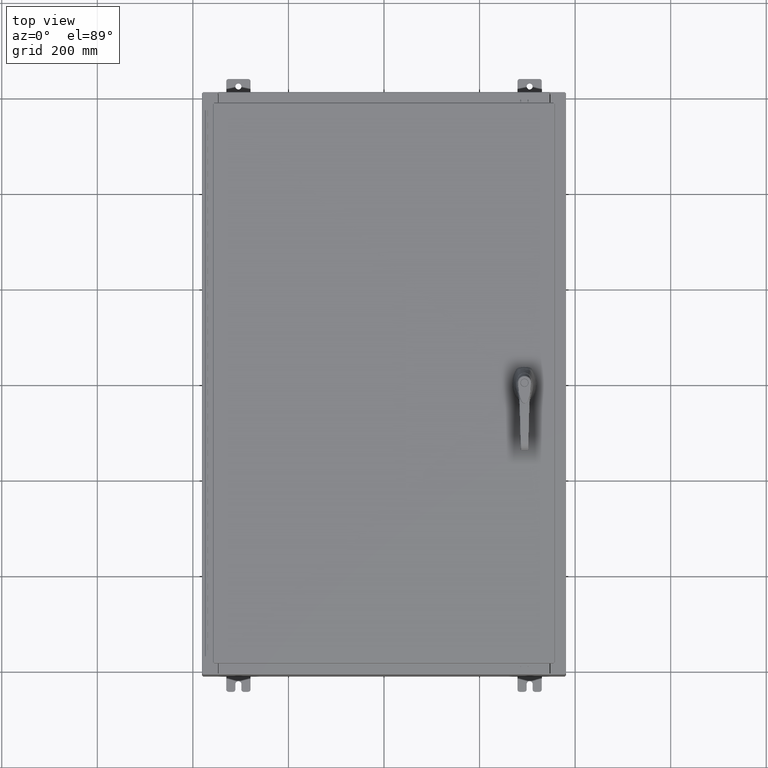
[diagram: clean part render]
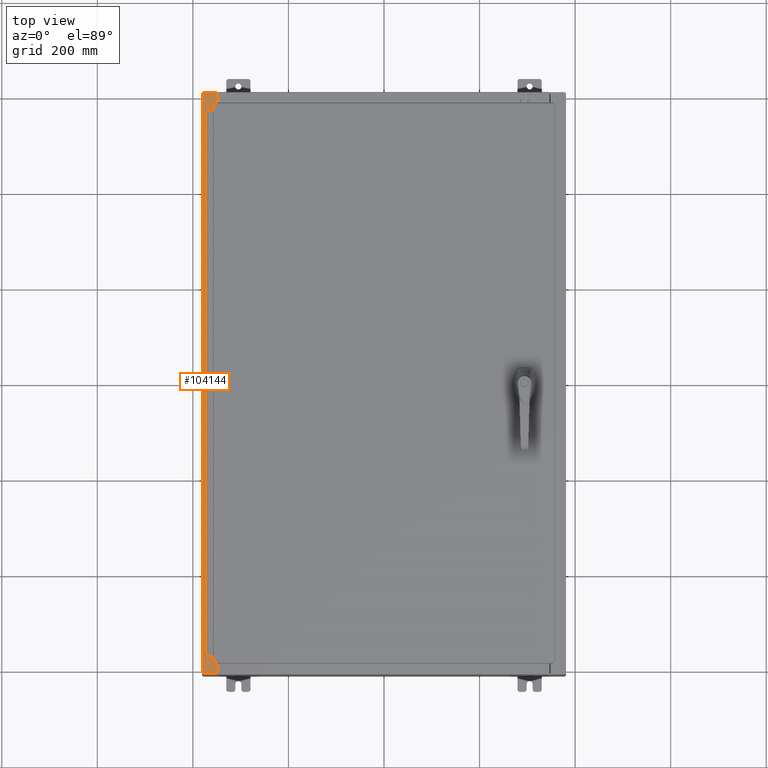
[diagram: same view with one face highlighted and labeled with its STEP entity id]
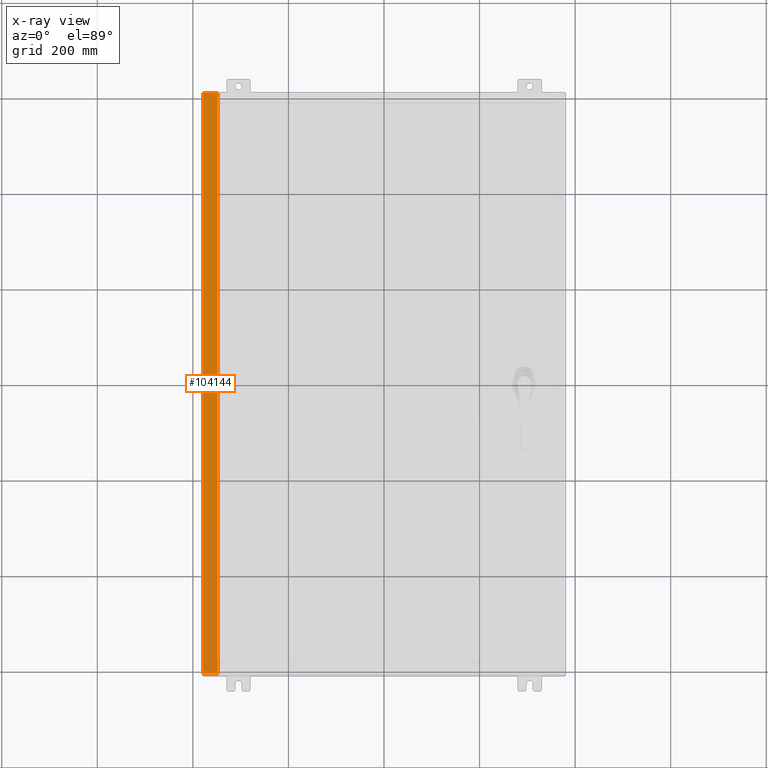
[diagram: x-ray of the same camera — body ghosted, the highlighted face saturated]
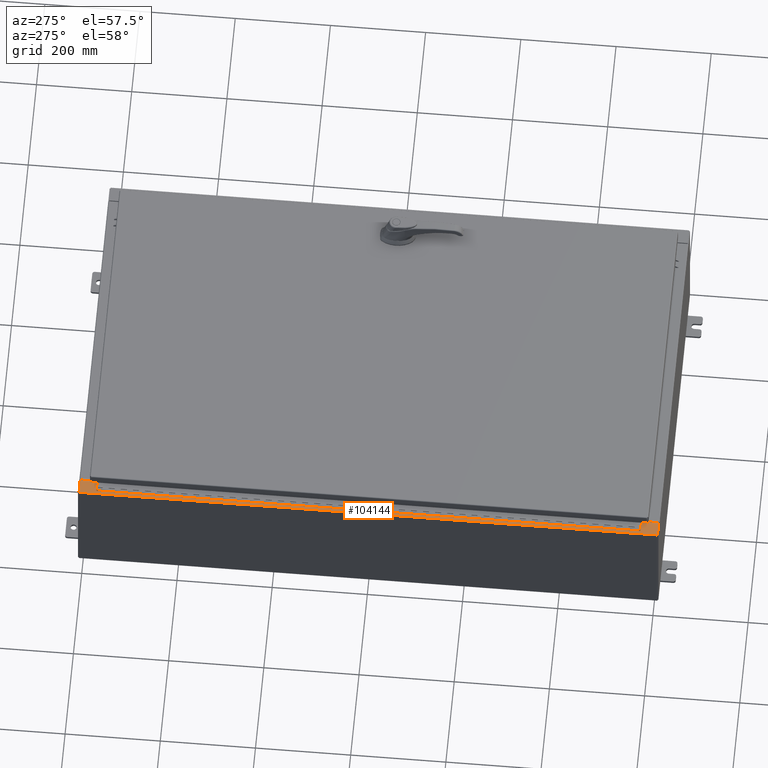
[diagram: same view with one face highlighted and labeled with its STEP entity id]
A machine part, top view. The second image highlights one B-rep face of the part: STEP entity #104144.
The next image is the same camera in x-ray: the body ghosted, the highlighted face saturated — about 0% of this face is hidden behind the body in this view.
A second angle (auxiliary view) of the same face is appended — the face is thin or edge-on in the first view.
In plain terms, the highlighted planar face has unit normal (0, -0, -1).
Its self-contained STEP definition (entity closure, byte-faithful):
#1047 = CARTESIAN_POINT ( 'NONE',  ( -14.91230000000003900, -23.92529999999998200, 9.925299999999998200 ) ) ;
#2034 = VERTEX_POINT ( 'NONE', #50280 ) ;
#2399 = LINE ( 'NONE', #49290, #108466 ) ;
#2751 = DIRECTION ( 'NONE',  ( 1.000000000000000000, -4.379057701015053300E-047, 7.132762385546384700E-015 ) ) ;
#3239 = EDGE_CURVE ( 'NONE', #2034, #44377, #90040, .T. ) ;
#5123 = VERTEX_POINT ( 'NONE', #18824 ) ;
#6023 = ORIENTED_EDGE ( 'NONE', *, *, #55796, .F. ) ;
#6844 = CARTESIAN_POINT ( 'NONE',  ( -13.69970000000003900, 22.63110000000000400, 9.925300000000007100 ) ) ;
#7265 = PLANE ( 'NONE',  #94428 ) ;
#9211 = ORIENTED_EDGE ( 'NONE', *, *, #113988, .F. ) ;
#10143 = ORIENTED_EDGE ( 'NONE', *, *, #124432, .F. ) ;
#10261 = ORIENTED_EDGE ( 'NONE', *, *, #82898, .T. ) ;
#14428 = DIRECTION ( 'NONE',  ( 4.567295697298285000E-017, 1.000000000000000000, -4.567295697298248600E-017 ) ) ;
#15144 = VERTEX_POINT ( 'NONE', #104171 ) ;
#15501 = VERTEX_POINT ( 'NONE', #50083 ) ;
#16002 = CARTESIAN_POINT ( 'NONE',  ( -13.69970000000003900, 22.63110000000000400, 9.925300000000007100 ) ) ;
#16205 = VERTEX_POINT ( 'NONE', #84220 ) ;
#16533 = EDGE_CURVE ( 'NONE', #5123, #44377, #71769, .T. ) ;
#16674 = VERTEX_POINT ( 'NONE', #121655 ) ;
#17579 = DIRECTION ( 'NONE',  ( 7.132762385546384700E-015, -4.567295697298280600E-017, -1.000000000000000000 ) ) ;
#18245 = ORIENTED_EDGE ( 'NONE', *, *, #48439, .T. ) ;
#18824 = CARTESIAN_POINT ( 'NONE',  ( -13.75005000000003700, -22.63109999999997500, 9.925300000000007100 ) ) ;
#18844 = EDGE_CURVE ( 'NONE', #117971, #60412, #52752, .T. ) ;
#20532 = VERTEX_POINT ( 'NONE', #65198 ) ;
#21724 = ORIENTED_EDGE ( 'NONE', *, *, #24195, .T. ) ;
#22668 = LINE ( 'NONE', #74558, #73967 ) ;
#23455 = DIRECTION ( 'NONE',  ( -1.000000000000000000, 4.379057701015053300E-047, -7.132762385546384700E-015 ) ) ;
#24195 = EDGE_CURVE ( 'NONE', #117971, #2034, #114578, .T. ) ;
#24975 = CIRCLE ( 'NONE', #34709, 0.01867499999999949400 ) ;
#25057 = CARTESIAN_POINT ( 'NONE',  ( -14.91230000000003900, 23.92529999999999600, 9.925299999999998200 ) ) ;
#25486 = VECTOR ( 'NONE', #14428, 39.37007874015748100 ) ;
#28523 = VERTEX_POINT ( 'NONE', #6844 ) ;
#29571 = ORIENTED_EDGE ( 'NONE', *, *, #18844, .F. ) ;
#30005 = CARTESIAN_POINT ( 'NONE',  ( -13.75005000000003700, -22.59374999999997500, 9.925300000000008900 ) ) ;
#32013 = ORIENTED_EDGE ( 'NONE', *, *, #99360, .F. ) ;
#33181 = EDGE_LOOP ( 'NONE', ( #10143, #18245, #10261, #29571, #21724, #76399, #79606, #44348, #6023, #9211, #52588, #32013 ) ) ;
#34666 = CARTESIAN_POINT ( 'NONE',  ( -14.91230000000003700, 23.92529999999999600, 9.925299999999998200 ) ) ;
#34709 = AXIS2_PLACEMENT_3D ( 'NONE', #120009, #58359, #130370 ) ;
#36532 = DIRECTION ( 'NONE',  ( 0.0000000000000000000, 1.000000000000000000, -4.567295697298281900E-017 ) ) ;
#38142 = CARTESIAN_POINT ( 'NONE',  ( -13.75005000000003700, -22.63109999999997500, 9.925300000000008900 ) ) ;
#38647 = VECTOR ( 'NONE', #95501, 39.37007874015748100 ) ;
#43137 = LINE ( 'NONE', #127070, #118772 ) ;
#44348 = ORIENTED_EDGE ( 'NONE', *, *, #86475, .F. ) ;
#44377 = VERTEX_POINT ( 'NONE', #107088 ) ;
#46615 = VECTOR ( 'NONE', #36532, 39.37007874015748100 ) ;
#46927 = CARTESIAN_POINT ( 'NONE',  ( -13.75005000000003700, 22.61242500000000200, 9.925300000000008900 ) ) ;
#48439 = EDGE_CURVE ( 'NONE', #28523, #15144, #49842, .T. ) ;
#49290 = CARTESIAN_POINT ( 'NONE',  ( -13.71270000000003900, 22.59375000000000000, 9.925300000000008900 ) ) ;
#49796 = EDGE_CURVE ( 'NONE', #16205, #16674, #43137, .T. ) ;
#49842 = LINE ( 'NONE', #108418, #46615 ) ;
#49958 = LINE ( 'NONE', #83994, #132043 ) ;
#50083 = CARTESIAN_POINT ( 'NONE',  ( -13.71270000000003900, -22.59374999999997500, 9.925300000000008900 ) ) ;
#50280 = CARTESIAN_POINT ( 'NONE',  ( -13.69970000000003900, -23.92529999999998200, 9.925300000000007100 ) ) ;
#52588 = ORIENTED_EDGE ( 'NONE', *, *, #49796, .F. ) ;
#52752 = LINE ( 'NONE', #34666, #25486 ) ;
#53849 = CARTESIAN_POINT ( 'NONE',  ( -7.105562016127586800E-014, -23.92529999999998200, 9.925300000000104800 ) ) ;
#55027 = DIRECTION ( 'NONE',  ( 1.000000000000000000, 0.0000000000000000000, 0.0000000000000000000 ) ) ;
#55796 = EDGE_CURVE ( 'NONE', #15501, #131831, #49958, .T. ) ;
#56620 = VECTOR ( 'NONE', #2751, 39.37007874015748100 ) ;
#57217 = DIRECTION ( 'NONE',  ( 1.000000000000000000, 0.0000000000000000000, 0.0000000000000000000 ) ) ;
#57885 = LINE ( 'NONE', #16002, #102874 ) ;
#58359 = DIRECTION ( 'NONE',  ( -7.132762385546384700E-015, 4.567295697298281300E-017, 1.000000000000000000 ) ) ;
#60412 = VERTEX_POINT ( 'NONE', #25057 ) ;
#65198 = CARTESIAN_POINT ( 'NONE',  ( -13.75005000000003700, 22.63110000000000000, 9.925300000000007100 ) ) ;
#65638 = CARTESIAN_POINT ( 'NONE',  ( -13.69970000000003900, 4.533177998439465900E-016, 9.925300000000007100 ) ) ;
#70748 = AXIS2_PLACEMENT_3D ( 'NONE', #46927, #118871, #57217 ) ;
#71769 = LINE ( 'NONE', #38142, #95939 ) ;
#73650 = DIRECTION ( 'NONE',  ( -1.000000000000000000, 0.0000000000000000000, 0.0000000000000000000 ) ) ;
#73967 = VECTOR ( 'NONE', #23455, 39.37007874015748100 ) ;
#74558 = CARTESIAN_POINT ( 'NONE',  ( -7.105562016127584200E-014, 23.92529999999999600, 9.925300000000103000 ) ) ;
#76399 = ORIENTED_EDGE ( 'NONE', *, *, #3239, .T. ) ;
#77470 = DIRECTION ( 'NONE',  ( -1.000000000000000000, -8.681145560800197900E-014, 4.340572780400098900E-014 ) ) ;
#79010 = CARTESIAN_POINT ( 'NONE',  ( -7.105562016127585500E-014, 4.533177998439511200E-016, 9.925300000000104800 ) ) ;
#79606 = ORIENTED_EDGE ( 'NONE', *, *, #16533, .F. ) ;
#80192 = DIRECTION ( 'NONE',  ( -0.0000000000000000000, -1.000000000000000000, -0.0000000000000000000 ) ) ;
#82898 = EDGE_CURVE ( 'NONE', #15144, #60412, #22668, .T. ) ;
#83994 = CARTESIAN_POINT ( 'NONE',  ( -13.71270000000003900, -22.59374999999997500, 9.925300000000008900 ) ) ;
#84220 = CARTESIAN_POINT ( 'NONE',  ( -13.75005000000003700, 22.59375000000000000, 9.925300000000007100 ) ) ;
#86475 = EDGE_CURVE ( 'NONE', #131831, #5123, #24975, .T. ) ;
#89382 = DIRECTION ( 'NONE',  ( -1.000000000000000000, 0.0000000000000000000, -7.132762385546384700E-015 ) ) ;
#90040 = LINE ( 'NONE', #65638, #38647 ) ;
#94428 = AXIS2_PLACEMENT_3D ( 'NONE', #79010, #17579, #89382 ) ;
#95501 = DIRECTION ( 'NONE',  ( 0.0000000000000000000, 1.000000000000000000, -4.567295697298281900E-017 ) ) ;
#95939 = VECTOR ( 'NONE', #123297, 39.37007874015748100 ) ;
#97373 = CIRCLE ( 'NONE', #70748, 0.01867499999999949400 ) ;
#99360 = EDGE_CURVE ( 'NONE', #20532, #16205, #97373, .T. ) ;
#102874 = VECTOR ( 'NONE', #77470, 39.37007874015748100 ) ;
#104144 = ADVANCED_FACE ( 'NONE', ( #112670 ), #7265, .F. ) ;
#104171 = CARTESIAN_POINT ( 'NONE',  ( -13.69970000000003900, 23.92529999999999600, 9.925300000000005300 ) ) ;
#107088 = CARTESIAN_POINT ( 'NONE',  ( -13.69970000000003900, -22.63109999999998200, 9.925300000000007100 ) ) ;
#108418 = CARTESIAN_POINT ( 'NONE',  ( -13.69970000000003900, 4.533177998439465900E-016, 9.925300000000007100 ) ) ;
#108466 = VECTOR ( 'NONE', #80192, 39.37007874015748100 ) ;
#112670 = FACE_OUTER_BOUND ( 'NONE', #33181, .T. ) ;
#113988 = EDGE_CURVE ( 'NONE', #16674, #15501, #2399, .T. ) ;
#114578 = LINE ( 'NONE', #53849, #56620 ) ;
#117971 = VERTEX_POINT ( 'NONE', #1047 ) ;
#118772 = VECTOR ( 'NONE', #55027, 39.37007874015748100 ) ;
#118871 = DIRECTION ( 'NONE',  ( -7.132762385546384700E-015, 4.567295697298281300E-017, 1.000000000000000000 ) ) ;
#120009 = CARTESIAN_POINT ( 'NONE',  ( -13.75005000000003700, -22.61242499999997300, 9.925300000000008900 ) ) ;
#121655 = CARTESIAN_POINT ( 'NONE',  ( -13.71270000000003900, 22.59375000000000000, 9.925300000000008900 ) ) ;
#123297 = DIRECTION ( 'NONE',  ( 1.000000000000000000, -8.681145560800197900E-014, -4.340572780400098900E-014 ) ) ;
#124432 = EDGE_CURVE ( 'NONE', #28523, #20532, #57885, .T. ) ;
#127070 = CARTESIAN_POINT ( 'NONE',  ( -13.75005000000003700, 22.59375000000000000, 9.925300000000008900 ) ) ;
#130370 = DIRECTION ( 'NONE',  ( 1.000000000000000000, 0.0000000000000000000, 0.0000000000000000000 ) ) ;
#131831 = VERTEX_POINT ( 'NONE', #30005 ) ;
#132043 = VECTOR ( 'NONE', #73650, 39.37007874015748100 ) ;